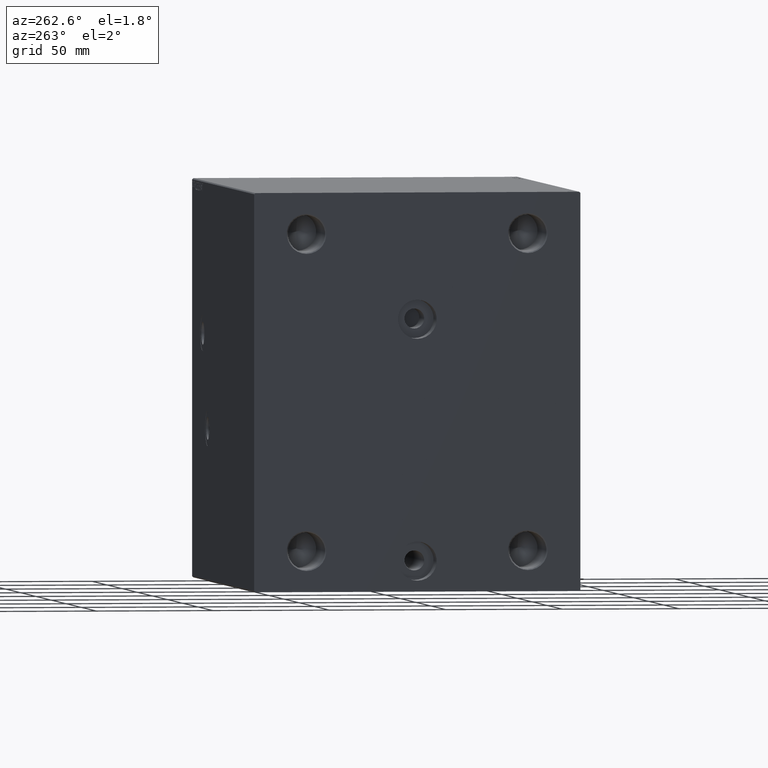
[diagram: clean part render]
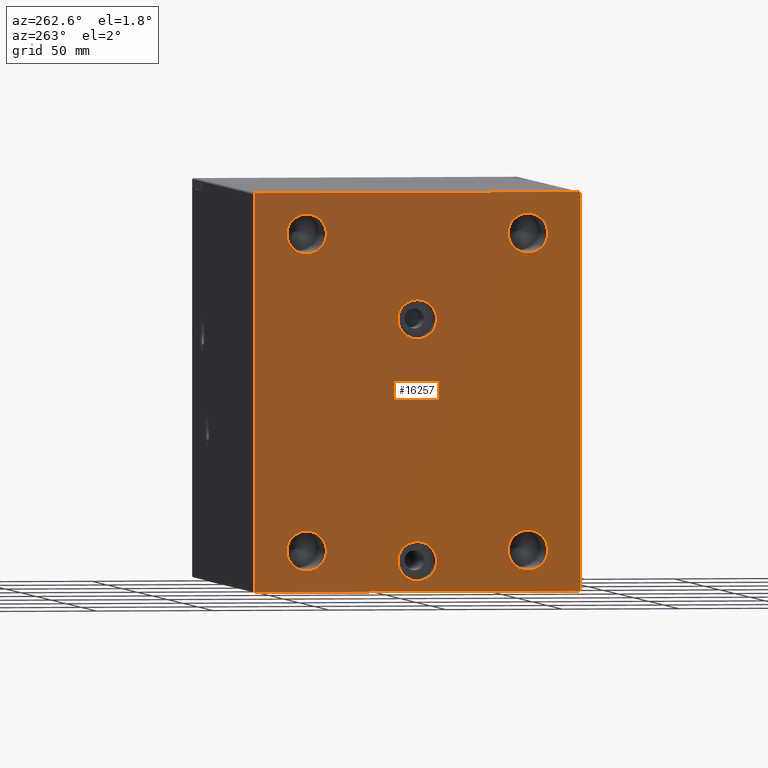
[diagram: same view with one face highlighted and labeled with its STEP entity id]
A machine part, auxiliary view. The second image highlights one B-rep face of the part: STEP entity #16257.
In plain terms, the highlighted planar face has unit normal (-1, -0, 0).
Its self-contained STEP definition (entity closure, byte-faithful):
#49 = VECTOR ( 'NONE', #21219, 1000.000000000000000 ) ;
#342 = AXIS2_PLACEMENT_3D ( 'NONE', #27233, #23405, #41016 ) ;
#403 = CIRCLE ( 'NONE', #31453, 8.330000000000003624 ) ;
#719 = ORIENTED_EDGE ( 'NONE', *, *, #3305, .F. ) ;
#850 = CARTESIAN_POINT ( 'NONE',  ( 205.0000000000000000, -77.25000000000196110, -77.24999999999766942 ) ) ;
#1243 = ORIENTED_EDGE ( 'NONE', *, *, #23528, .F. ) ;
#1506 = ORIENTED_EDGE ( 'NONE', *, *, #6233, .T. ) ;
#2271 = CARTESIAN_POINT ( 'NONE',  ( 205.0000000000000000, -47.50000000000000000, 67.49999999999997158 ) ) ;
#2471 = VERTEX_POINT ( 'NONE', #4637 ) ;
#2588 = CARTESIAN_POINT ( 'NONE',  ( 205.0000000000000000, 70.00000000000000000, 85.00000000000000000 ) ) ;
#3178 = CARTESIAN_POINT ( 'NONE',  ( 205.0000000000000000, 70.00000000000002842, -84.50000000000004263 ) ) ;
#3305 = EDGE_CURVE ( 'NONE', #5421, #17516, #25099, .T. ) ;
#3434 = CARTESIAN_POINT ( 'NONE',  ( 205.0000000000000000, 47.50000000000000000, 58.99999999999995737 ) ) ;
#3450 = CARTESIAN_POINT ( 'NONE',  ( 205.0000000000000000, -47.50000000000000000, 76.00000000000000000 ) ) ;
#3688 = DIRECTION ( 'NONE',  ( 0.000000000000000000, -1.632680918566406300E-16, 1.000000000000000000 ) ) ;
#3739 = CARTESIAN_POINT ( 'NONE',  ( 205.0000000000000000, 77.24999999999809575, -77.25000000000238742 ) ) ;
#4637 = CARTESIAN_POINT ( 'NONE',  ( 205.0000000000000000, -47.50000000000000000, -59.00000000000001421 ) ) ;
#5107 = VECTOR ( 'NONE', #7512, 1000.000000000000000 ) ;
#5421 = VERTEX_POINT ( 'NONE', #36181 ) ;
#5492 = DIRECTION ( 'NONE',  ( 1.000000000000000000, 0.000000000000000000, 0.000000000000000000 ) ) ;
#5665 = VECTOR ( 'NONE', #10978, 1000.000000000000000 ) ;
#5709 = FACE_OUTER_BOUND ( 'NONE', #31865, .T. ) ;
#5731 = AXIS2_PLACEMENT_3D ( 'NONE', #18157, #21090, #28313 ) ;
#5952 = CIRCLE ( 'NONE', #21904, 8.500000000000007105 ) ;
#6120 = VERTEX_POINT ( 'NONE', #27136 ) ;
#6193 = LINE ( 'NONE', #2588, #21410 ) ;
#6233 = EDGE_CURVE ( 'NONE', #6120, #33371, #10389, .T. ) ;
#6271 = CARTESIAN_POINT ( 'NONE',  ( 205.0000000000000000, -1.734723475976807094E-14, 63.67000000000000171 ) ) ;
#6507 = CARTESIAN_POINT ( 'NONE',  ( 205.0000000000000000, 3.796405077356792748E-15, -30.99999999999998579 ) ) ;
#6880 = CARTESIAN_POINT ( 'NONE',  ( 205.0000000000000000, 70.00000000000000000, 84.49999999999998579 ) ) ;
#6894 = ORIENTED_EDGE ( 'NONE', *, *, #11995, .F. ) ;
#6908 = VERTEX_POINT ( 'NONE', #6880 ) ;
#6913 = EDGE_CURVE ( 'NONE', #2471, #13685, #14343, .T. ) ;
#7196 = VERTEX_POINT ( 'NONE', #3434 ) ;
#7393 = EDGE_CURVE ( 'NONE', #20063, #38164, #13626, .T. ) ;
#7445 = CARTESIAN_POINT ( 'NONE',  ( 205.0000000000000000, -69.49999999999992895, 84.99999999999997158 ) ) ;
#7512 = DIRECTION ( 'NONE',  ( 0.000000000000000000, -0.7071067811865671127, -0.7071067811865279218 ) ) ;
#7664 = AXIS2_PLACEMENT_3D ( 'NONE', #20443, #20000, #13872 ) ;
#7691 = ORIENTED_EDGE ( 'NONE', *, *, #23579, .F. ) ;
#7885 = CARTESIAN_POINT ( 'NONE',  ( 205.0000000000000000, -47.50000000000000000, 58.99999999999995737 ) ) ;
#7905 = CIRCLE ( 'NONE', #42586, 8.500000000000007105 ) ;
#8136 = CIRCLE ( 'NONE', #34810, 8.330000000000003624 ) ;
#8656 = AXIS2_PLACEMENT_3D ( 'NONE', #15922, #5492, #19531 ) ;
#9167 = AXIS2_PLACEMENT_3D ( 'NONE', #6507, #30925, #31601 ) ;
#9331 = FACE_BOUND ( 'NONE', #13436, .T. ) ;
#9544 = CIRCLE ( 'NONE', #18272, 8.330000000000003624 ) ;
#9550 = FACE_BOUND ( 'NONE', #41867, .T. ) ;
#9660 = DIRECTION ( 'NONE',  ( 1.000000000000000000, -0.000000000000000000, -0.000000000000000000 ) ) ;
#9939 = EDGE_CURVE ( 'NONE', #15757, #24967, #20938, .T. ) ;
#9993 = ORIENTED_EDGE ( 'NONE', *, *, #37240, .F. ) ;
#10027 = CARTESIAN_POINT ( 'NONE',  ( 205.0000000000000000, 70.00000000000002842, -85.00000000000001421 ) ) ;
#10373 = CARTESIAN_POINT ( 'NONE',  ( 205.0000000000000000, 3.796405077356792748E-15, -30.99999999999998579 ) ) ;
#10389 = LINE ( 'NONE', #38420, #12846 ) ;
#10440 = ORIENTED_EDGE ( 'NONE', *, *, #38593, .F. ) ;
#10978 = DIRECTION ( 'NONE',  ( -0.000000000000000000, 0.7071067811865671127, 0.7071067811865279218 ) ) ;
#11730 = CIRCLE ( 'NONE', #39902, 8.500000000000007105 ) ;
#11995 = EDGE_CURVE ( 'NONE', #35152, #35792, #33911, .T. ) ;
#12712 = DIRECTION ( 'NONE',  ( 0.000000000000000000, 1.000000000000000000, 0.000000000000000000 ) ) ;
#12734 = FACE_BOUND ( 'NONE', #15020, .T. ) ;
#12846 = VECTOR ( 'NONE', #24415, 1000.000000000000000 ) ;
#12957 = PLANE ( 'NONE',  #8656 ) ;
#13436 = EDGE_LOOP ( 'NONE', ( #30178, #1243 ) ) ;
#13626 = CIRCLE ( 'NONE', #23021, 8.500000000000007105 ) ;
#13685 = VERTEX_POINT ( 'NONE', #41563 ) ;
#13820 = EDGE_CURVE ( 'NONE', #24967, #6908, #37382, .T. ) ;
#13872 = DIRECTION ( 'NONE',  ( 0.000000000000000000, 0.000000000000000000, -1.000000000000000000 ) ) ;
#14343 = CIRCLE ( 'NONE', #35983, 8.500000000000007105 ) ;
#14605 = ORIENTED_EDGE ( 'NONE', *, *, #19616, .T. ) ;
#14828 = CIRCLE ( 'NONE', #342, 8.500000000000007105 ) ;
#15020 = EDGE_LOOP ( 'NONE', ( #719, #9993 ) ) ;
#15414 = DIRECTION ( 'NONE',  ( 0.000000000000000000, 0.000000000000000000, -1.000000000000000000 ) ) ;
#15593 = CARTESIAN_POINT ( 'NONE',  ( 205.0000000000000000, -1.632710397607832855E-14, 80.33000000000001251 ) ) ;
#15644 = EDGE_CURVE ( 'NONE', #13685, #2471, #7905, .T. ) ;
#15757 = VERTEX_POINT ( 'NONE', #31350 ) ;
#15922 = CARTESIAN_POINT ( 'NONE',  ( 205.0000000000000000, 0.000000000000000000, 0.000000000000000000 ) ) ;
#16121 = CARTESIAN_POINT ( 'NONE',  ( 205.0000000000000000, -70.00000000000000000, -85.00000000000001421 ) ) ;
#16257 = ADVANCED_FACE ( 'NONE', ( #9550, #12734, #37127, #9331, #23136, #43913, #5709 ), #12957, .T. ) ;
#16795 = ORIENTED_EDGE ( 'NONE', *, *, #13820, .T. ) ;
#16883 = DIRECTION ( 'NONE',  ( 0.000000000000000000, 0.000000000000000000, -1.000000000000000000 ) ) ;
#17264 = EDGE_CURVE ( 'NONE', #31395, #15757, #26723, .T. ) ;
#17516 = VERTEX_POINT ( 'NONE', #38911 ) ;
#17968 = CARTESIAN_POINT ( 'NONE',  ( 205.0000000000000000, -69.50000000000002842, -85.00000000000001421 ) ) ;
#18157 = CARTESIAN_POINT ( 'NONE',  ( 205.0000000000000000, 47.50000000000000000, -67.50000000000002842 ) ) ;
#18272 = AXIS2_PLACEMENT_3D ( 'NONE', #21570, #18858, #29015 ) ;
#18535 = CARTESIAN_POINT ( 'NONE',  ( 205.0000000000000000, 47.50000000000000000, -76.00000000000005684 ) ) ;
#18649 = VERTEX_POINT ( 'NONE', #41359 ) ;
#18806 = CARTESIAN_POINT ( 'NONE',  ( 205.0000000000000000, -1.734723475976807094E-14, 72.00000000000001421 ) ) ;
#18858 = DIRECTION ( 'NONE',  ( 1.000000000000000000, 0.000000000000000000, 0.000000000000000000 ) ) ;
#19008 = EDGE_CURVE ( 'NONE', #42488, #6120, #20875, .T. ) ;
#19531 = DIRECTION ( 'NONE',  ( 0.000000000000000000, 0.000000000000000000, -1.000000000000000000 ) ) ;
#19616 = EDGE_CURVE ( 'NONE', #33371, #31395, #28656, .T. ) ;
#20000 = DIRECTION ( 'NONE',  ( 1.000000000000000000, -0.000000000000000000, -0.000000000000000000 ) ) ;
#20063 = VERTEX_POINT ( 'NONE', #3450 ) ;
#20443 = CARTESIAN_POINT ( 'NONE',  ( 205.0000000000000000, 47.50000000000000000, -67.50000000000002842 ) ) ;
#20830 = VERTEX_POINT ( 'NONE', #33992 ) ;
#20875 = LINE ( 'NONE', #34644, #5107 ) ;
#20938 = LINE ( 'NONE', #3739, #5665 ) ;
#21090 = DIRECTION ( 'NONE',  ( 1.000000000000000000, -0.000000000000000000, -0.000000000000000000 ) ) ;
#21219 = DIRECTION ( 'NONE',  ( -0.000000000000000000, 0.7071067811865279218, -0.7071067811865671127 ) ) ;
#21410 = VECTOR ( 'NONE', #29733, 1000.000000000000000 ) ;
#21513 = CARTESIAN_POINT ( 'NONE',  ( 205.0000000000000000, -47.50000000000000000, 67.49999999999997158 ) ) ;
#21570 = CARTESIAN_POINT ( 'NONE',  ( 205.0000000000000000, -1.734723475976807094E-14, 72.00000000000001421 ) ) ;
#21809 = ORIENTED_EDGE ( 'NONE', *, *, #9939, .T. ) ;
#21904 = AXIS2_PLACEMENT_3D ( 'NONE', #44067, #26907, #26025 ) ;
#22651 = DIRECTION ( 'NONE',  ( 0.000000000000000000, 0.000000000000000000, -1.000000000000000000 ) ) ;
#22789 = DIRECTION ( 'NONE',  ( -0.000000000000000000, -0.7071067811865181518, 0.7071067811865769936 ) ) ;
#23008 = LINE ( 'NONE', #26405, #33363 ) ;
#23021 = AXIS2_PLACEMENT_3D ( 'NONE', #2271, #29204, #22651 ) ;
#23136 = FACE_BOUND ( 'NONE', #38391, .T. ) ;
#23288 = EDGE_CURVE ( 'NONE', #38289, #44627, #9544, .T. ) ;
#23405 = DIRECTION ( 'NONE',  ( 1.000000000000000000, -0.000000000000000000, -0.000000000000000000 ) ) ;
#23528 = EDGE_CURVE ( 'NONE', #38164, #20063, #11730, .T. ) ;
#23579 = EDGE_CURVE ( 'NONE', #44627, #38289, #8136, .T. ) ;
#23895 = ORIENTED_EDGE ( 'NONE', *, *, #37491, .T. ) ;
#23990 = EDGE_CURVE ( 'NONE', #6908, #18649, #23008, .T. ) ;
#24415 = DIRECTION ( 'NONE',  ( 0.000000000000000000, 0.000000000000000000, -1.000000000000000000 ) ) ;
#24558 = EDGE_CURVE ( 'NONE', #20830, #7196, #5952, .T. ) ;
#24967 = VERTEX_POINT ( 'NONE', #3178 ) ;
#25099 = CIRCLE ( 'NONE', #9167, 8.330000000000003624 ) ;
#25405 = EDGE_LOOP ( 'NONE', ( #27500, #30355 ) ) ;
#25585 = DIRECTION ( 'NONE',  ( 1.000000000000000000, 0.000000000000000000, 0.000000000000000000 ) ) ;
#26025 = DIRECTION ( 'NONE',  ( 0.000000000000000000, 0.000000000000000000, -1.000000000000000000 ) ) ;
#26398 = ORIENTED_EDGE ( 'NONE', *, *, #23990, .T. ) ;
#26405 = CARTESIAN_POINT ( 'NONE',  ( 205.0000000000000000, 77.25000000000292744, 77.24999999999650413 ) ) ;
#26723 = LINE ( 'NONE', #16121, #39746 ) ;
#26907 = DIRECTION ( 'NONE',  ( 1.000000000000000000, -0.000000000000000000, -0.000000000000000000 ) ) ;
#27136 = CARTESIAN_POINT ( 'NONE',  ( 205.0000000000000000, -70.00000000000000000, 84.49999999999991473 ) ) ;
#27233 = CARTESIAN_POINT ( 'NONE',  ( 205.0000000000000000, 47.50000000000000000, 67.49999999999997158 ) ) ;
#27340 = DIRECTION ( 'NONE',  ( 1.000000000000000000, 0.000000000000000000, -0.000000000000000000 ) ) ;
#27500 = ORIENTED_EDGE ( 'NONE', *, *, #24558, .F. ) ;
#27536 = EDGE_LOOP ( 'NONE', ( #10440, #6894 ) ) ;
#28081 = VECTOR ( 'NONE', #3688, 1000.000000000000000 ) ;
#28313 = DIRECTION ( 'NONE',  ( 0.000000000000000000, 0.000000000000000000, -1.000000000000000000 ) ) ;
#28506 = DIRECTION ( 'NONE',  ( 1.000000000000000000, -0.000000000000000000, -0.000000000000000000 ) ) ;
#28656 = LINE ( 'NONE', #850, #49 ) ;
#29015 = DIRECTION ( 'NONE',  ( 0.000000000000000000, 0.000000000000000000, -1.000000000000000000 ) ) ;
#29204 = DIRECTION ( 'NONE',  ( 1.000000000000000000, -0.000000000000000000, -0.000000000000000000 ) ) ;
#29300 = ORIENTED_EDGE ( 'NONE', *, *, #19008, .T. ) ;
#29733 = DIRECTION ( 'NONE',  ( 0.000000000000000000, -1.000000000000000000, -2.973811673103097665E-16 ) ) ;
#30128 = ORIENTED_EDGE ( 'NONE', *, *, #15644, .F. ) ;
#30178 = ORIENTED_EDGE ( 'NONE', *, *, #7393, .F. ) ;
#30355 = ORIENTED_EDGE ( 'NONE', *, *, #34177, .F. ) ;
#30753 = ORIENTED_EDGE ( 'NONE', *, *, #6913, .F. ) ;
#30925 = DIRECTION ( 'NONE',  ( 1.000000000000000000, 0.000000000000000000, -0.000000000000000000 ) ) ;
#31350 = CARTESIAN_POINT ( 'NONE',  ( 205.0000000000000000, 69.50000000000002842, -85.00000000000001421 ) ) ;
#31395 = VERTEX_POINT ( 'NONE', #17968 ) ;
#31453 = AXIS2_PLACEMENT_3D ( 'NONE', #10373, #27340, #40904 ) ;
#31601 = DIRECTION ( 'NONE',  ( 0.000000000000000000, 0.000000000000000000, 1.000000000000000000 ) ) ;
#31865 = EDGE_LOOP ( 'NONE', ( #23895, #29300, #1506, #14605, #40296, #21809, #16795, #26398 ) ) ;
#33363 = VECTOR ( 'NONE', #22789, 1000.000000000000000 ) ;
#33371 = VERTEX_POINT ( 'NONE', #43018 ) ;
#33398 = CARTESIAN_POINT ( 'NONE',  ( 205.0000000000000000, -47.50000000000000000, -67.50000000000002842 ) ) ;
#33797 = DIRECTION ( 'NONE',  ( 1.000000000000000000, -0.000000000000000000, -0.000000000000000000 ) ) ;
#33911 = CIRCLE ( 'NONE', #5731, 8.500000000000007105 ) ;
#33992 = CARTESIAN_POINT ( 'NONE',  ( 205.0000000000000000, 47.50000000000000000, 76.00000000000000000 ) ) ;
#34177 = EDGE_CURVE ( 'NONE', #7196, #20830, #14828, .T. ) ;
#34295 = DIRECTION ( 'NONE',  ( 0.000000000000000000, 0.000000000000000000, -1.000000000000000000 ) ) ;
#34644 = CARTESIAN_POINT ( 'NONE',  ( 205.0000000000000000, -77.24999999999801048, 77.25000000000230216 ) ) ;
#34683 = CARTESIAN_POINT ( 'NONE',  ( 205.0000000000000000, -47.50000000000000000, -67.50000000000002842 ) ) ;
#34810 = AXIS2_PLACEMENT_3D ( 'NONE', #18806, #25585, #39138 ) ;
#35152 = VERTEX_POINT ( 'NONE', #18535 ) ;
#35792 = VERTEX_POINT ( 'NONE', #43204 ) ;
#35983 = AXIS2_PLACEMENT_3D ( 'NONE', #34683, #33797, #16883 ) ;
#36181 = CARTESIAN_POINT ( 'NONE',  ( 205.0000000000000000, 3.796405077356792748E-15, -39.32999999999999119 ) ) ;
#37127 = FACE_BOUND ( 'NONE', #25405, .T. ) ;
#37240 = EDGE_CURVE ( 'NONE', #17516, #5421, #403, .T. ) ;
#37382 = LINE ( 'NONE', #10027, #28081 ) ;
#37491 = EDGE_CURVE ( 'NONE', #18649, #42488, #6193, .T. ) ;
#38164 = VERTEX_POINT ( 'NONE', #7885 ) ;
#38289 = VERTEX_POINT ( 'NONE', #15593 ) ;
#38391 = EDGE_LOOP ( 'NONE', ( #30753, #30128 ) ) ;
#38420 = CARTESIAN_POINT ( 'NONE',  ( 205.0000000000000000, -70.00000000000000000, 84.99999999999997158 ) ) ;
#38593 = EDGE_CURVE ( 'NONE', #35792, #35152, #40881, .T. ) ;
#38911 = CARTESIAN_POINT ( 'NONE',  ( 205.0000000000000000, 4.816535861046539088E-15, -22.66999999999998039 ) ) ;
#39138 = DIRECTION ( 'NONE',  ( 0.000000000000000000, 0.000000000000000000, -1.000000000000000000 ) ) ;
#39746 = VECTOR ( 'NONE', #12712, 1000.000000000000000 ) ;
#39902 = AXIS2_PLACEMENT_3D ( 'NONE', #21513, #28506, #15414 ) ;
#40296 = ORIENTED_EDGE ( 'NONE', *, *, #17264, .T. ) ;
#40881 = CIRCLE ( 'NONE', #7664, 8.500000000000007105 ) ;
#40904 = DIRECTION ( 'NONE',  ( 0.000000000000000000, 0.000000000000000000, 1.000000000000000000 ) ) ;
#40986 = ORIENTED_EDGE ( 'NONE', *, *, #23288, .F. ) ;
#41016 = DIRECTION ( 'NONE',  ( 0.000000000000000000, 0.000000000000000000, -1.000000000000000000 ) ) ;
#41359 = CARTESIAN_POINT ( 'NONE',  ( 205.0000000000000000, 69.50000000000002842, 85.00000000000000000 ) ) ;
#41563 = CARTESIAN_POINT ( 'NONE',  ( 205.0000000000000000, -47.50000000000000000, -76.00000000000005684 ) ) ;
#41867 = EDGE_LOOP ( 'NONE', ( #7691, #40986 ) ) ;
#42488 = VERTEX_POINT ( 'NONE', #7445 ) ;
#42586 = AXIS2_PLACEMENT_3D ( 'NONE', #33398, #9660, #34295 ) ;
#43018 = CARTESIAN_POINT ( 'NONE',  ( 205.0000000000000000, -70.00000000000000000, -84.50000000000001421 ) ) ;
#43204 = CARTESIAN_POINT ( 'NONE',  ( 205.0000000000000000, 47.50000000000000000, -59.00000000000001421 ) ) ;
#43913 = FACE_BOUND ( 'NONE', #27536, .T. ) ;
#44067 = CARTESIAN_POINT ( 'NONE',  ( 205.0000000000000000, 47.50000000000000000, 67.49999999999997158 ) ) ;
#44627 = VERTEX_POINT ( 'NONE', #6271 ) ;